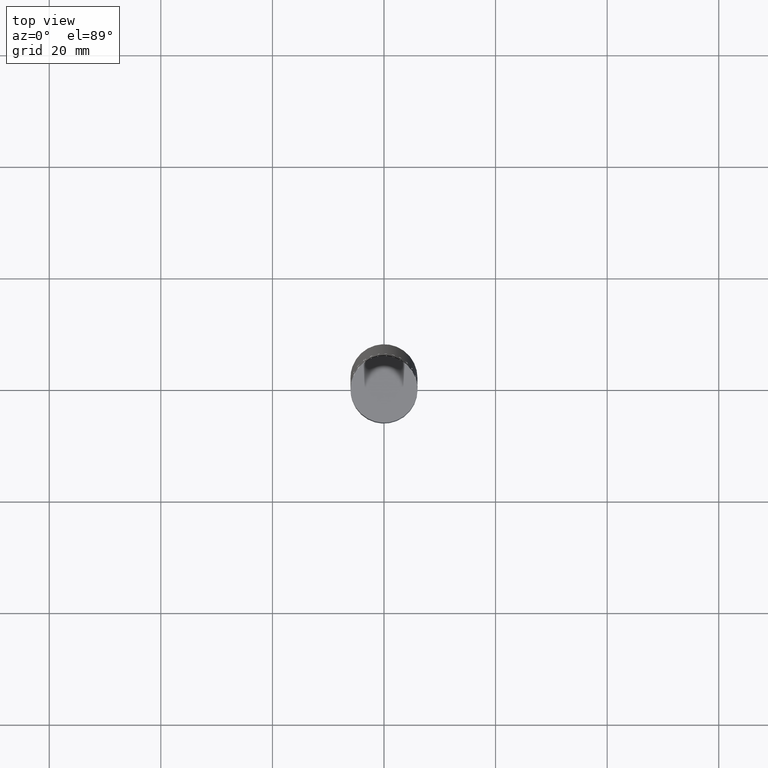
[diagram: clean part render]
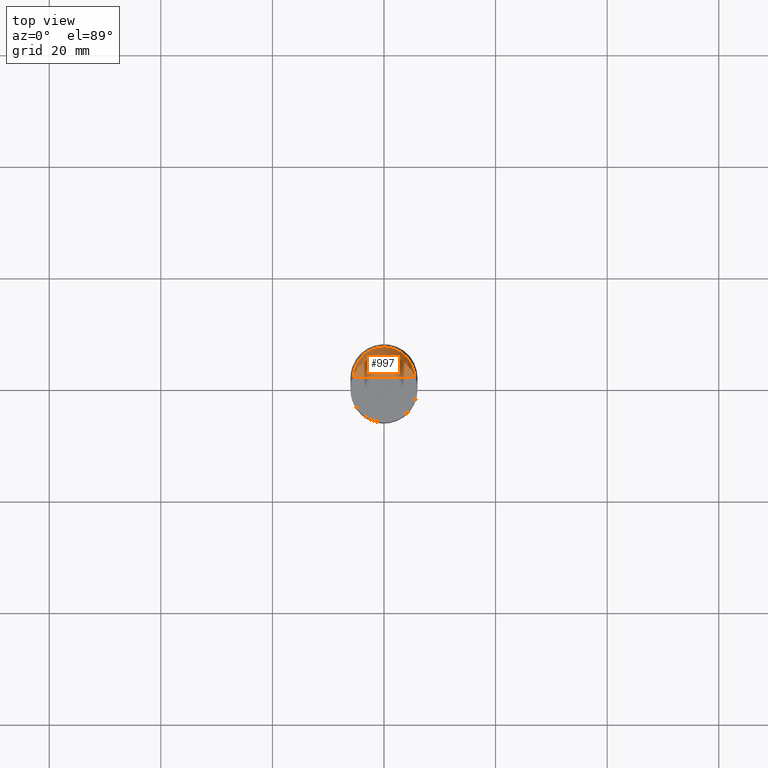
[diagram: same view with one face highlighted and labeled with its STEP entity id]
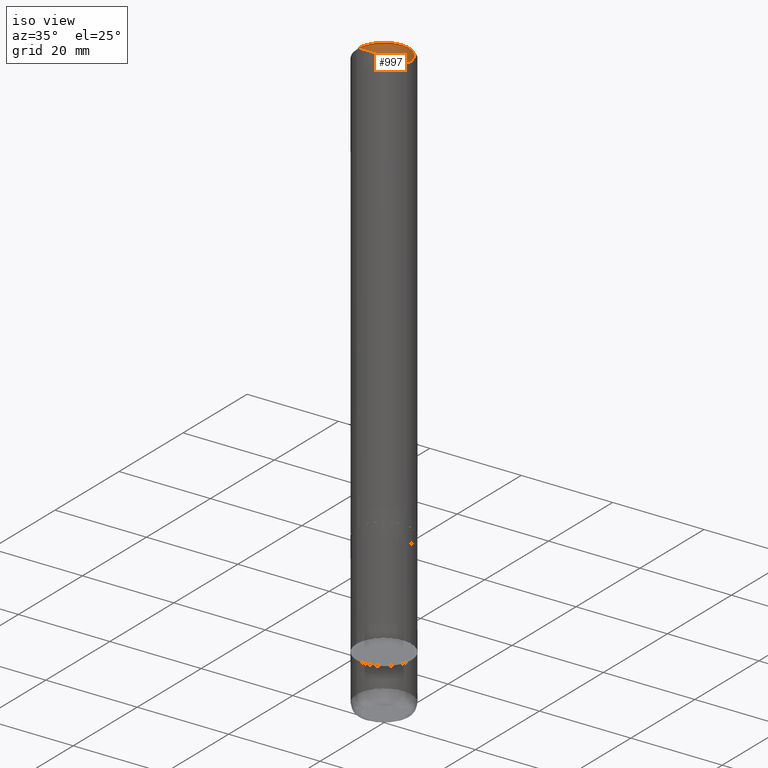
[diagram: same view with one face highlighted and labeled with its STEP entity id]
A machine part, top view. The second image highlights one B-rep face of the part: STEP entity #997.
A second angle (iso view) of the same face is appended — the face is thin or edge-on in the first view.
In plain terms, the highlighted face is a freeform B-spline surface patch.
Its self-contained STEP definition (entity closure, byte-faithful):
#736=CARTESIAN_POINT('',(5.5,0.0,95.0));
#737=CARTESIAN_POINT('',(5.5,5.5,95.0));
#738=CARTESIAN_POINT('',(0.0,5.5,95.0));
#739=CARTESIAN_POINT('',(-5.5,5.5,95.0));
#740=CARTESIAN_POINT('',(-5.5,0.0,95.0));
#741=CARTESIAN_POINT('',(0.0,0.0,95.0));
#982=(
BOUNDED_SURFACE()
B_SPLINE_SURFACE(1,2,(
(#736,#737,#738,#739,#740),
(#741,#741,#741,#741,#741)
), .UNSPECIFIED.,.F.,.F.,.F.)
B_SPLINE_SURFACE_WITH_KNOTS((2,2),(3,2,3),(
0.0,1.0),(
0.0,0.5,1.0), .UNSPECIFIED.)
GEOMETRIC_REPRESENTATION_ITEM()
RATIONAL_B_SPLINE_SURFACE(((1.0,0.707106781187,1.0,0.707106781187,1.0),
(1.0,0.707106781187,1.0,0.707106781187,1.0)
))
REPRESENTATION_ITEM('')
SURFACE()
);
#983=(
BOUNDED_CURVE()
B_SPLINE_CURVE(1,(#741,#736),.UNSPECIFIED.,.F.,.F.)
B_SPLINE_CURVE_WITH_KNOTS((2,2),
(0.0,1.0),.UNSPECIFIED.)
CURVE()
GEOMETRIC_REPRESENTATION_ITEM()
RATIONAL_B_SPLINE_CURVE((1.0,1.0))
REPRESENTATION_ITEM('')
);
#984=(
BOUNDED_CURVE()
B_SPLINE_CURVE(2,(#736,#737,#738,#739,#740),.UNSPECIFIED.,.F.,.F.)
B_SPLINE_CURVE_WITH_KNOTS((3,2,3),
(0.0,0.5,1.0),.UNSPECIFIED.)
CURVE()
GEOMETRIC_REPRESENTATION_ITEM()
RATIONAL_B_SPLINE_CURVE((1.0,0.707106781187,1.0,0.707106781187,1.0))
REPRESENTATION_ITEM('')
);
#985=(
BOUNDED_CURVE()
B_SPLINE_CURVE(1,(#740,#741),.UNSPECIFIED.,.F.,.F.)
B_SPLINE_CURVE_WITH_KNOTS((2,2),
(0.0,1.0),.UNSPECIFIED.)
CURVE()
GEOMETRIC_REPRESENTATION_ITEM()
RATIONAL_B_SPLINE_CURVE((1.0,1.0))
REPRESENTATION_ITEM('')
);
#986=VERTEX_POINT('',#736);
#987=VERTEX_POINT('',#740);
#988=VERTEX_POINT('',#741);
#989=EDGE_CURVE('',#988,#986,#983,.T.);
#990=EDGE_CURVE('',#986,#987,#984,.T.);
#991=EDGE_CURVE('',#987,#988,#985,.T.);
#992=ORIENTED_EDGE('',*,*,#989,.T.);
#993=ORIENTED_EDGE('',*,*,#990,.T.);
#994=ORIENTED_EDGE('',*,*,#991,.T.);
#995=EDGE_LOOP('',(#992,#993,#994));
#996=FACE_OUTER_BOUND('',#995,.T.);
#997=ADVANCED_FACE('',(#996),#982,.T.);